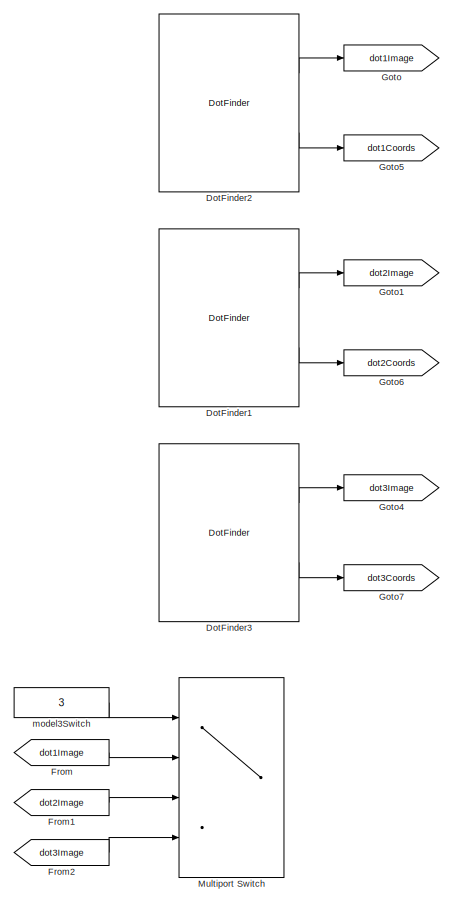
[diagram: root canvas - part 1/2, left side, full height]
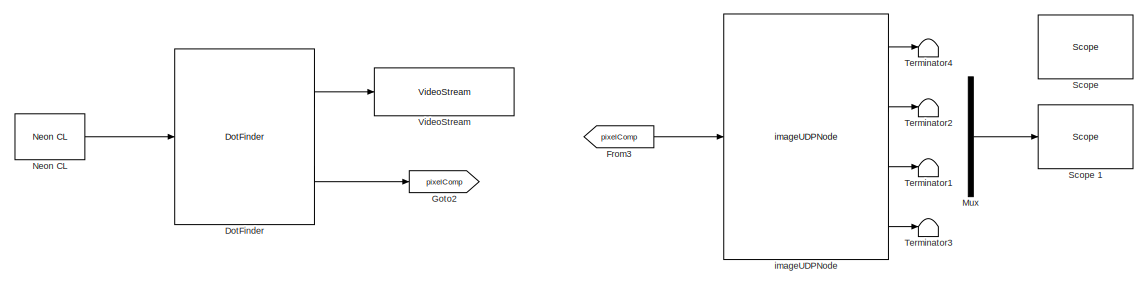
[diagram: root canvas - part 2/2, central region]
MODEL slx_980fc456d5ce
KIND model
CONFIG AbsTol = auto
CONFIG EnableMultiTasking = on
CONFIG FixedStep = 0.015
CONFIG MaxStep = auto
CONFIG MinStep = auto
CONFIG RelTol = 1e-3
CONFIG SampleTimeConstraint = Unconstrained
CONFIG Solver = FixedStepDiscrete
CONFIG SolverName = FixedStepDiscrete
CONFIG StartTime = 0.0
CONFIG StopTime = Inf
BLOCK [Reference] DotFinder  REF=dotFinder_ul/DotFinder
  Ports = [1, 2]
  SourceBlock = dotFinder_ul/DotFinder
BLOCK [Reference] DotFinder1  REF=SingleDotFinder_ul/DotFinder
  Commented = on
  Ports = [1, 2]
  SourceBlock = SingleDotFinder_ul/DotFinder
BLOCK [Reference] DotFinder2  REF=SingleDotFinder_ul/DotFinder
  Commented = on
  Ports = [1, 2]
  SourceBlock = SingleDotFinder_ul/DotFinder
BLOCK [Reference] DotFinder3  REF=SingleDotFinder_ul/DotFinder
  Commented = on
  Ports = [1, 2]
  SourceBlock = SingleDotFinder_ul/DotFinder
BLOCK [From] From
  Commented = on
  GotoTag = dot1Image
BLOCK [From] From1
  Commented = on
  GotoTag = dot2Image
BLOCK [From] From2
  Commented = on
  GotoTag = dot3Image
BLOCK [From] From3
  GotoTag = pixelComp
BLOCK [Goto] Goto
  Commented = on
  GotoTag = dot1Image
BLOCK [Goto] Goto1
  Commented = on
  GotoTag = dot2Image
BLOCK [Goto] Goto2
  GotoTag = pixelComp
BLOCK [Goto] Goto4
  Commented = on
  GotoTag = dot3Image
BLOCK [Goto] Goto5
  Commented = on
  GotoTag = dot1Coords
BLOCK [Goto] Goto6
  Commented = on
  GotoTag = dot2Coords
BLOCK [Goto] Goto7
  Commented = on
  GotoTag = dot3Coords
BLOCK [MultiPortSwitch] Multiport Switch
  Commented = on
  InputSameDT = off
  Ports = [4, 1]
  SaturateOnIntegerOverflow = off
BLOCK [Mux] Mux
  Commented = on
  DisplayOption = bar
  Inputs = 2
  Ports = [2, 1]
BLOCK [Reference] Neon CL   REF=xpcbitflowlib/Neon CL 
  Ports = [0, 1]
  SourceBlock = xpcbitflowlib/Neon CL
  SourceProductName = Simulink Real-Time: Speedgoat I/O Driver Library
  SourceType = bfneon
BLOCK [Reference] Scope   REF=slrtlib/Displays and
Logging/Scope 
  Commented = on
  Ports = [1]
  SourceBlock = slrtlib/Displays and\nLogging/Scope
  SourceProductBaseCode = XP
  SourceProductName = Simulink Real-Time
  SourceType = xpcscopeblock
BLOCK [Reference] Scope 1  REF=slrtlib/Displays and
Logging/Scope 
  Commented = on
  Ports = [1]
  SourceBlock = slrtlib/Displays and\nLogging/Scope
  SourceProductBaseCode = XP
  SourceProductName = Simulink Real-Time
  SourceType = xpcscopeblock
BLOCK [Terminator] Terminator1
BLOCK [Terminator] Terminator2
BLOCK [Terminator] Terminator3
BLOCK [Terminator] Terminator4
BLOCK [Reference] VideoStream  REF=videoStream_ul/VideoStream
  Ports = [1]
  SourceBlock = videoStream_ul/VideoStream
BLOCK [Reference] imageUDPNode  REF=imageUDPNode_ul/imageUDPNode
  Ports = [1, 4]
  SourceBlock = imageUDPNode_ul/imageUDPNode
BLOCK [Constant] model3Switch
  Commented = on
  Value = 3
LINE DotFinder1:1 -> Goto1:1
LINE DotFinder1:2 -> Goto6:1
LINE DotFinder2:1 -> Goto:1
LINE DotFinder2:2 -> Goto5:1
LINE DotFinder3:1 -> Goto4:1
LINE DotFinder3:2 -> Goto7:1
LINE DotFinder:1 -> VideoStream:1
LINE DotFinder:2 -> Goto2:1
LINE From1:1 -> Multiport Switch:3
LINE From2:1 -> Multiport Switch:4
LINE From3:1 -> imageUDPNode:1
LINE From:1 -> Multiport Switch:2
LINE Mux:1 -> Scope 1:1
LINE Neon CL :1 -> DotFinder:1
LINE imageUDPNode:1 -> Terminator4:1
LINE imageUDPNode:2 -> Terminator2:1
LINE imageUDPNode:3 -> Terminator1:1
LINE imageUDPNode:4 -> Terminator3:1
LINE model3Switch:1 -> Multiport Switch:1
